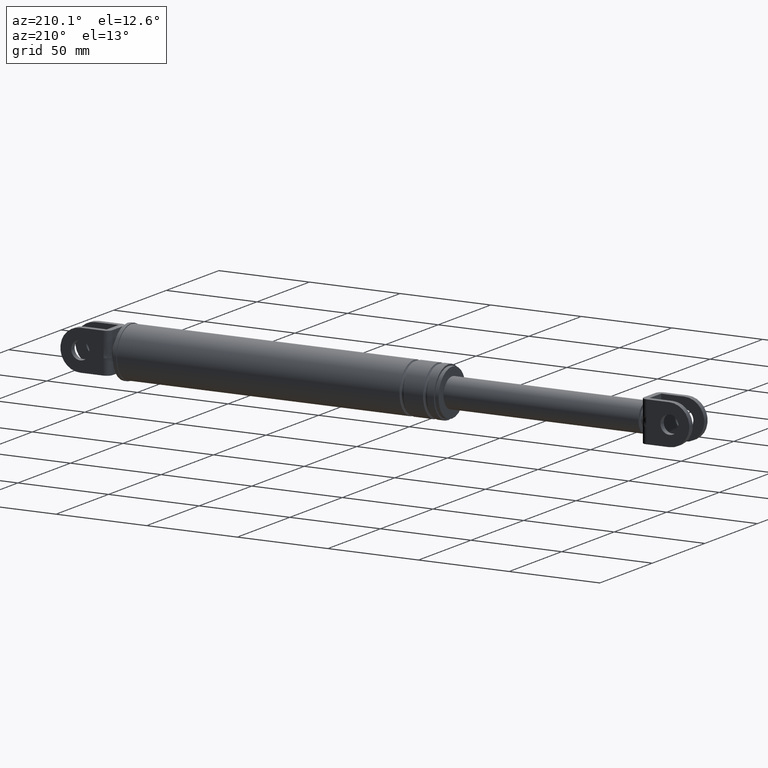
[diagram: clean part render]
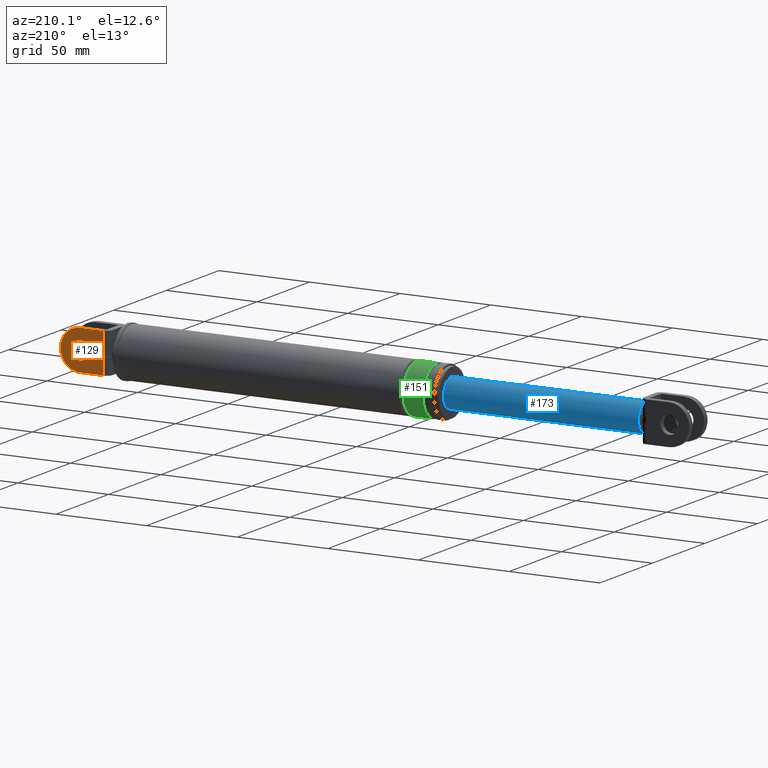
[diagram: same view with three faces highlighted in distinct colors, each labeled with its STEP entity id]
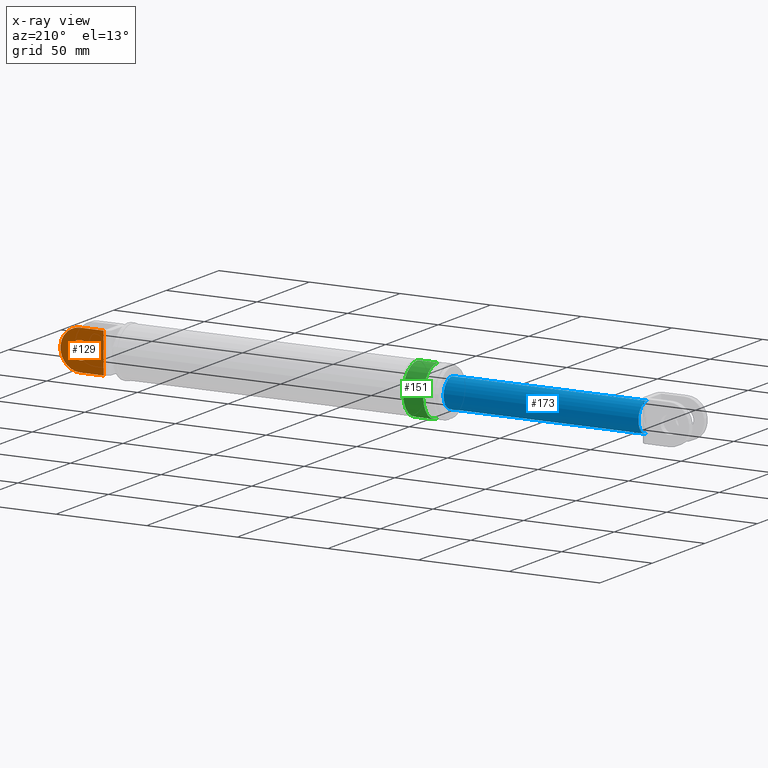
[diagram: x-ray of the same camera — body ghosted, the three highlighted faces saturated]
A machine part, auxiliary view with three faces highlighted in distinct colors.
The next image is the same camera in x-ray (body ghosted, the three faces saturated) — at least one of them is partly hidden behind the body in this view.
Their STEP definitions:

[orange] entity #129 — the highlighted planar face has unit normal (0, -1, 0).
#129=ADVANCED_FACE('',(#357,#358),#356,.F.);
#356=PLANE('',#1027);
#357=FACE_OUTER_BOUND('',#1028,.T.);
#358=FACE_BOUND('',#1029,.T.);
#1024=CARTESIAN_POINT('',(3.61232317116E+002,8.69999700000E+000,2.07324636778E+002));
#1025=DIRECTION('',(0.00000000000E+000,-1.00000000000E+000,0.00000000000E+000));
#1026=DIRECTION('',(0.00000000000E+000,0.00000000000E+000,-1.00000000000E+000));
#1027=AXIS2_PLACEMENT_3D('',#1024,#1025,#1026);
#1028=EDGE_LOOP('',(#1608,#1609,#1610,#1611,#1612,#1613));
#1029=EDGE_LOOP('',(#1614,#1615));
#1608=ORIENTED_EDGE('',*,*,#1899,.T.);
#1609=ORIENTED_EDGE('',*,*,#1862,.T.);
#1610=ORIENTED_EDGE('',*,*,#1859,.T.);
#1611=ORIENTED_EDGE('',*,*,#1892,.T.);
#1612=ORIENTED_EDGE('',*,*,#1903,.F.);
#1613=ORIENTED_EDGE('',*,*,#1917,.F.);
#1614=ORIENTED_EDGE('',*,*,#1918,.T.);
#1615=ORIENTED_EDGE('',*,*,#1919,.T.);
#1859=EDGE_CURVE('',#2024,#2039,#2046,.T.);
#1862=EDGE_CURVE('',#2053,#2024,#2066,.T.);
#1892=EDGE_CURVE('',#2039,#2261,#2268,.T.);
#1899=EDGE_CURVE('',#2316,#2053,#2317,.T.);
#1903=EDGE_CURVE('',#2341,#2261,#2342,.T.);
#1917=EDGE_CURVE('',#2316,#2341,#2436,.T.);
#1918=EDGE_CURVE('',#2442,#2443,#2444,.T.);
#1919=EDGE_CURVE('',#2443,#2442,#2450,.T.);
#2024=VERTEX_POINT('',#3138);
#2039=VERTEX_POINT('',#3149);
#2046=(BOUNDED_CURVE() B_SPLINE_CURVE(3,(#3154,#3155,#3156,#3157,#3158,#3159,#3160,#3161,#3162,#3163),.UNSPECIFIED.,.F.,.F.) B_SPLINE_CURVE_WITH_KNOTS((4,2,2,2,4),(0.00000000000E+000,1.19940700729E-003,2.39881401459E-003,3.59822102188E-003,4.79762802917E-003),.UNSPECIFIED.) CURVE() GEOMETRIC_REPRESENTATION_ITEM() RATIONAL_B_SPLINE_CURVE((1.00000000000E+000,1.00000000000E+000,1.00000000000E+000,1.00000000000E+000,1.00000000000E+000,1.00000000000E+000,1.00000000000E+000,1.00000000000E+000,1.00000000000E+000,1.00000000000E+000)) REPRESENTATION_ITEM('') );
#2053=VERTEX_POINT('',#3165);
#2066=LINE('',#3173,#3174);
#2261=VERTEX_POINT('',#3303);
#2268=LINE('',#3308,#3309);
#2316=VERTEX_POINT('',#3338);
#2317=LINE('',#3339,#3340);
#2341=VERTEX_POINT('',#3351);
#2342=LINE('',#3352,#3353);
#2436=CIRCLE('',#3417,1.10000000000E+001);
#2442=VERTEX_POINT('',#3418);
#2443=VERTEX_POINT('',#3419);
#2444=CIRCLE('',#3423,5.00000000000E+000);
#2450=CIRCLE('',#3427,5.00000000000E+000);
#3138=CARTESIAN_POINT('',(3.63655556841E+002,8.69999700000E+000,1.91726712983E+002));
#3149=CARTESIAN_POINT('',(3.63655556841E+002,8.69999700000E+000,1.96522558268E+002));
#3154=CARTESIAN_POINT('',(3.63655556841E+002,8.69999700000E+000,1.91726712983E+002));
#3155=CARTESIAN_POINT('',(3.63655556841E+002,8.69999700000E+000,1.92126589111E+002));
#3156=CARTESIAN_POINT('',(3.63643922145E+002,8.69999700000E+000,1.92526241690E+002));
#3157=CARTESIAN_POINT('',(3.63624058673E+002,8.69999700000E+000,1.93325612289E+002));
#3158=CARTESIAN_POINT('',(3.63616248001E+002,8.69999700000E+000,1.93725370496E+002));
#3159=CARTESIAN_POINT('',(3.63616256988E+002,8.69999700000E+000,1.94524682576E+002));
#3160=CARTESIAN_POINT('',(3.63624072569E+002,8.69999700000E+000,1.94924258172E+002));
#3161=CARTESIAN_POINT('',(3.63643931496E+002,8.69999700000E+000,1.95723365822E+002));
#3162=CARTESIAN_POINT('',(3.63655556841E+002,8.69999700000E+000,1.96122902182E+002));
#3163=CARTESIAN_POINT('',(3.63655556841E+002,8.69999700000E+000,1.96522558268E+002));
#3165=CARTESIAN_POINT('',(3.63655556841E+002,8.69999700000E+000,1.83124635626E+002));
#3173=CARTESIAN_POINT('',(3.63655556841E+002,8.69999700000E+000,1.83124635626E+002));
#3174=VECTOR('',#3175,8.60207735738E+000);
#3175=DIRECTION('',(0.00000000000E+000,0.00000000000E+000,1.00000000000E+000));
#3303=CARTESIAN_POINT('',(3.63655556841E+002,8.69999700000E+000,2.05124635626E+002));
#3308=CARTESIAN_POINT('',(3.63655556841E+002,8.69999700000E+000,1.96522558268E+002));
#3309=VECTOR('',#3310,8.60207735738E+000);
#3310=DIRECTION('',(0.00000000000E+000,0.00000000000E+000,1.00000000000E+000));
#3338=CARTESIAN_POINT('',(3.76455555881E+002,8.69999700000E+000,1.83124635626E+002));
#3339=CARTESIAN_POINT('',(3.76455555881E+002,8.69999700000E+000,1.83124635626E+002));
#3340=VECTOR('',#3341,1.27999990401E+001);
#3341=DIRECTION('',(-1.00000000000E+000,0.00000000000E+000,0.00000000000E+000));
#3351=CARTESIAN_POINT('',(3.76455555881E+002,8.69999700000E+000,2.05124635626E+002));
#3352=CARTESIAN_POINT('',(3.76455555881E+002,8.69999700000E+000,2.05124635626E+002));
#3353=VECTOR('',#3354,1.27999990401E+001);
#3354=DIRECTION('',(-1.00000000000E+000,0.00000000000E+000,0.00000000000E+000));
#3414=CARTESIAN_POINT('',(3.76455556841E+002,8.69999700000E+000,1.94124635626E+002));
#3415=DIRECTION('',(-0.00000000000E+000,-1.00000000000E+000,0.00000000000E+000));
#3416=DIRECTION('',(-8.72664570491E-008,0.00000000000E+000,1.00000000000E+000));
#3417=AXIS2_PLACEMENT_3D('',#3414,#3415,#3416);
#3418=CARTESIAN_POINT('',(3.76455556841E+002,8.69999700000E+000,1.99124635626E+002));
#3419=CARTESIAN_POINT('',(3.76455556841E+002,8.69999700000E+000,1.89124635626E+002));
#3420=CARTESIAN_POINT('',(3.76455556841E+002,8.69999700000E+000,1.94124635626E+002));
#3421=DIRECTION('',(-0.00000000000E+000,-1.00000000000E+000,0.00000000000E+000));
#3422=DIRECTION('',(-1.22460635382E-016,0.00000000000E+000,1.00000000000E+000));
#3423=AXIS2_PLACEMENT_3D('',#3420,#3421,#3422);
#3424=CARTESIAN_POINT('',(3.76455556841E+002,8.69999700000E+000,1.94124635626E+002));
#3425=DIRECTION('',(-0.00000000000E+000,-1.00000000000E+000,0.00000000000E+000));
#3426=DIRECTION('',(-1.22460635382E-016,0.00000000000E+000,1.00000000000E+000));
#3427=AXIS2_PLACEMENT_3D('',#3424,#3425,#3426);

[blue] entity #173 — the highlighted cylindrical surface (edge-blend (fillet) strip) has radius 8 mm, axis along (1, 0, 0).
#173=ADVANCED_FACE('',(#803),#802,.T.);
#802=CYLINDRICAL_SURFACE('',#1441,8.00000000002E+000);
#803=FACE_OUTER_BOUND('',#1442,.T.);
#1438=CARTESIAN_POINT('',(0.00000000000E+000,0.00000000000E+000,1.94124635626E+002));
#1439=DIRECTION('',(1.00000000000E+000,-0.00000000000E+000,-0.00000000000E+000));
#1440=DIRECTION('',(-0.00000000000E+000,-0.00000000000E+000,-1.00000000000E+000));
#1441=AXIS2_PLACEMENT_3D('',#1438,#1439,#1440);
#1442=EDGE_LOOP('',(#1816,#1817,#1818,#1819));
#1816=ORIENTED_EDGE('',*,*,#2001,.T.);
#1817=ORIENTED_EDGE('',*,*,#2012,.F.);
#1818=ORIENTED_EDGE('',*,*,#2002,.F.);
#1819=ORIENTED_EDGE('',*,*,#2013,.T.);
#2001=EDGE_CURVE('',#2983,#2982,#2990,.T.);
#2002=EDGE_CURVE('',#2996,#2997,#2998,.T.);
#2012=EDGE_CURVE('',#2997,#2982,#3062,.T.);
#2013=EDGE_CURVE('',#2996,#2983,#3068,.T.);
#2982=VERTEX_POINT('',#3757);
#2983=VERTEX_POINT('',#3758);
#2990=CIRCLE('',#3766,8.00000000002E+000);
#2996=VERTEX_POINT('',#3767);
#2997=VERTEX_POINT('',#3768);
#2998=CIRCLE('',#3772,8.00000000013E+000);
#3062=(BOUNDED_CURVE() B_SPLINE_CURVE(1,(#3808,#3809),.UNSPECIFIED.,.F.,.F.) B_SPLINE_CURVE_WITH_KNOTS((2,2),(7.84313727165E-002,9.21568627546E-001),.UNSPECIFIED.) CURVE() GEOMETRIC_REPRESENTATION_ITEM() RATIONAL_B_SPLINE_CURVE((1.00000000000E+000,1.00000000000E+000)) REPRESENTATION_ITEM('') );
#3068=(BOUNDED_CURVE() B_SPLINE_CURVE(1,(#3810,#3811),.UNSPECIFIED.,.F.,.F.) B_SPLINE_CURVE_WITH_KNOTS((2,2),(7.84313725490E-002,9.21568627451E-001),.UNSPECIFIED.) CURVE() GEOMETRIC_REPRESENTATION_ITEM() RATIONAL_B_SPLINE_CURVE((7.50000000000E-001,7.50000000000E-001)) REPRESENTATION_ITEM('') );
#3757=CARTESIAN_POINT('',(1.76455556841E+002,8.88178419700E-016,1.86124635626E+002));
#3758=CARTESIAN_POINT('',(1.76455556841E+002,0.00000000000E+000,2.02124635626E+002));
#3763=CARTESIAN_POINT('',(1.76455556841E+002,0.00000000000E+000,1.94124635626E+002));
#3764=DIRECTION('',(-1.00000000000E+000,0.00000000000E+000,0.00000000000E+000));
#3765=DIRECTION('',(0.00000000000E+000,-1.22460635382E-016,1.00000000000E+000));
#3766=AXIS2_PLACEMENT_3D('',#3763,#3764,#3765);
#3767=CARTESIAN_POINT('',(6.89555568406E+001,0.00000000000E+000,2.02124635626E+002));
#3768=CARTESIAN_POINT('',(6.89555568406E+001,8.88178419700E-016,1.86124635626E+002));
#3769=CARTESIAN_POINT('',(6.89555568406E+001,0.00000000000E+000,1.94124635626E+002));
#3770=DIRECTION('',(-1.00000000000E+000,0.00000000000E+000,0.00000000000E+000));
#3771=DIRECTION('',(0.00000000000E+000,-1.22460635382E-016,1.00000000000E+000));
#3772=AXIS2_PLACEMENT_3D('',#3769,#3770,#3771);
#3808=CARTESIAN_POINT('',(6.89555568619E+001,0.00000000000E+000,1.86124635626E+002));
#3809=CARTESIAN_POINT('',(1.76455556853E+002,0.00000000000E+000,1.86124635626E+002));
#3810=CARTESIAN_POINT('',(6.89555568406E+001,-2.96059473233E-016,2.02124635626E+002));
#3811=CARTESIAN_POINT('',(1.76455556841E+002,-2.96059473233E-016,2.02124635626E+002));

[green] entity #151 — the highlighted cylindrical surface (edge-blend (fillet) strip) has radius 13.7 mm, axis along (1, 0, 0).
#151=ADVANCED_FACE('',(#578),#577,.T.);
#577=CYLINDRICAL_SURFACE('',#1274,1.37000000000E+001);
#578=FACE_OUTER_BOUND('',#1275,.T.);
#1271=CARTESIAN_POINT('',(0.00000000000E+000,0.00000000000E+000,1.94124635626E+002));
#1272=DIRECTION('',(1.00000000000E+000,-0.00000000000E+000,-0.00000000000E+000));
#1273=DIRECTION('',(0.00000000000E+000,1.22464679915E-016,1.00000000000E+000));
#1274=AXIS2_PLACEMENT_3D('',#1271,#1272,#1273);
#1275=EDGE_LOOP('',(#1704,#1705,#1706,#1707));
#1704=ORIENTED_EDGE('',*,*,#1930,.F.);
#1705=ORIENTED_EDGE('',*,*,#1948,.T.);
#1706=ORIENTED_EDGE('',*,*,#1936,.T.);
#1707=ORIENTED_EDGE('',*,*,#1949,.F.);
#1930=EDGE_CURVE('',#2518,#2519,#2520,.T.);
#1936=EDGE_CURVE('',#2559,#2552,#2560,.T.);
#1948=EDGE_CURVE('',#2518,#2559,#2634,.T.);
#1949=EDGE_CURVE('',#2519,#2552,#2640,.T.);
#2518=VERTEX_POINT('',#3454);
#2519=VERTEX_POINT('',#3455);
#2520=CIRCLE('',#3459,1.37000000000E+001);
#2552=VERTEX_POINT('',#3482);
#2559=VERTEX_POINT('',#3488);
#2560=CIRCLE('',#3492,1.37000000000E+001);
#2634=(BOUNDED_CURVE() B_SPLINE_CURVE(1,(#3530,#3531),.UNSPECIFIED.,.F.,.F.) B_SPLINE_CURVE_WITH_KNOTS((2,2),(8.33333343261E-002,9.16666667006E-001),.UNSPECIFIED.) CURVE() GEOMETRIC_REPRESENTATION_ITEM() RATIONAL_B_SPLINE_CURVE((1.00000000000E+000,1.00000000000E+000)) REPRESENTATION_ITEM('') );
#2640=(BOUNDED_CURVE() B_SPLINE_CURVE(1,(#3532,#3533),.UNSPECIFIED.,.F.,.F.) B_SPLINE_CURVE_WITH_KNOTS((2,2),(8.33333333333E-002,9.16666666667E-001),.UNSPECIFIED.) CURVE() GEOMETRIC_REPRESENTATION_ITEM() RATIONAL_B_SPLINE_CURVE((7.50000000000E-001,7.50000000000E-001)) REPRESENTATION_ITEM('') );
#3454=CARTESIAN_POINT('',(1.84455556841E+002,0.00000000000E+000,2.07824635626E+002));
#3455=CARTESIAN_POINT('',(1.84455556841E+002,0.00000000000E+000,1.80424635626E+002));
#3456=CARTESIAN_POINT('',(1.84455556841E+002,0.00000000000E+000,1.94124635626E+002));
#3457=DIRECTION('',(-1.00000000000E+000,0.00000000000E+000,0.00000000000E+000));
#3458=DIRECTION('',(0.00000000000E+000,-1.22460635382E-016,1.00000000000E+000));
#3459=AXIS2_PLACEMENT_3D('',#3456,#3457,#3458);
#3482=CARTESIAN_POINT('',(1.95455556841E+002,0.00000000000E+000,1.80424635626E+002));
#3488=CARTESIAN_POINT('',(1.95455556841E+002,0.00000000000E+000,2.07824635626E+002));
#3489=CARTESIAN_POINT('',(1.95455556841E+002,0.00000000000E+000,1.94124635626E+002));
#3490=DIRECTION('',(-1.00000000000E+000,0.00000000000E+000,0.00000000000E+000));
#3491=DIRECTION('',(0.00000000000E+000,-1.22460635382E-016,1.00000000000E+000));
#3492=AXIS2_PLACEMENT_3D('',#3489,#3490,#3491);
#3530=CARTESIAN_POINT('',(1.84455556854E+002,1.67776611483E-015,2.07824635626E+002));
#3531=CARTESIAN_POINT('',(1.95455556845E+002,1.67776611483E-015,2.07824635626E+002));
#3532=CARTESIAN_POINT('',(1.84455556841E+002,-5.92118946467E-016,1.80424635626E+002));
#3533=CARTESIAN_POINT('',(1.95455556841E+002,-5.92118946467E-016,1.80424635626E+002));